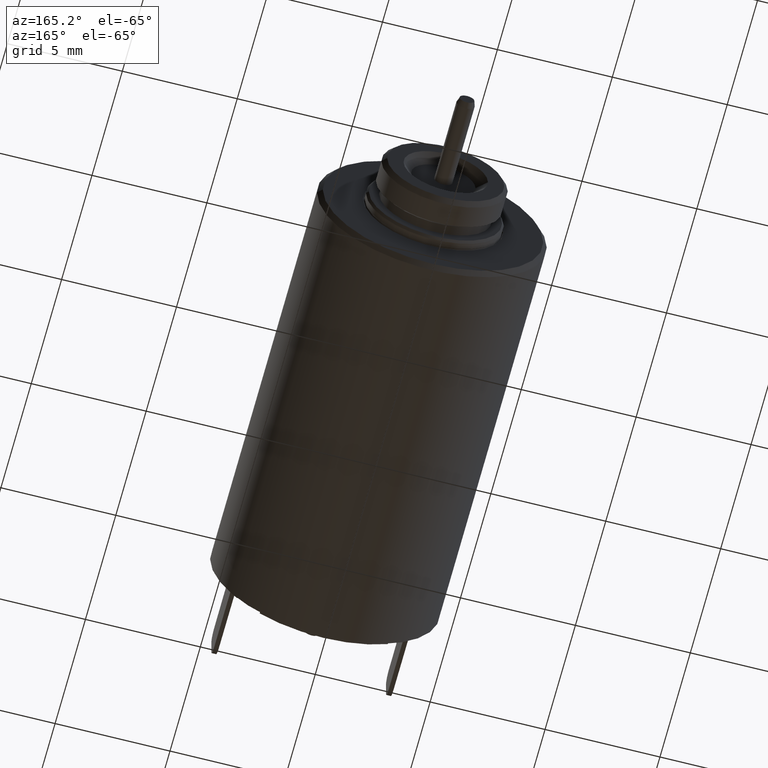
[diagram: clean part render]
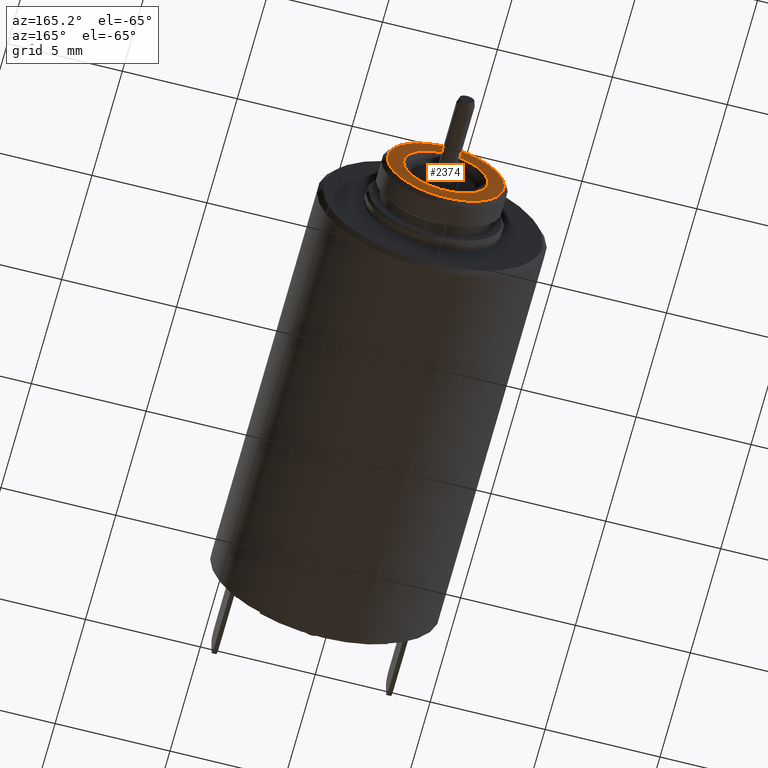
[diagram: same view with one face highlighted and labeled with its STEP entity id]
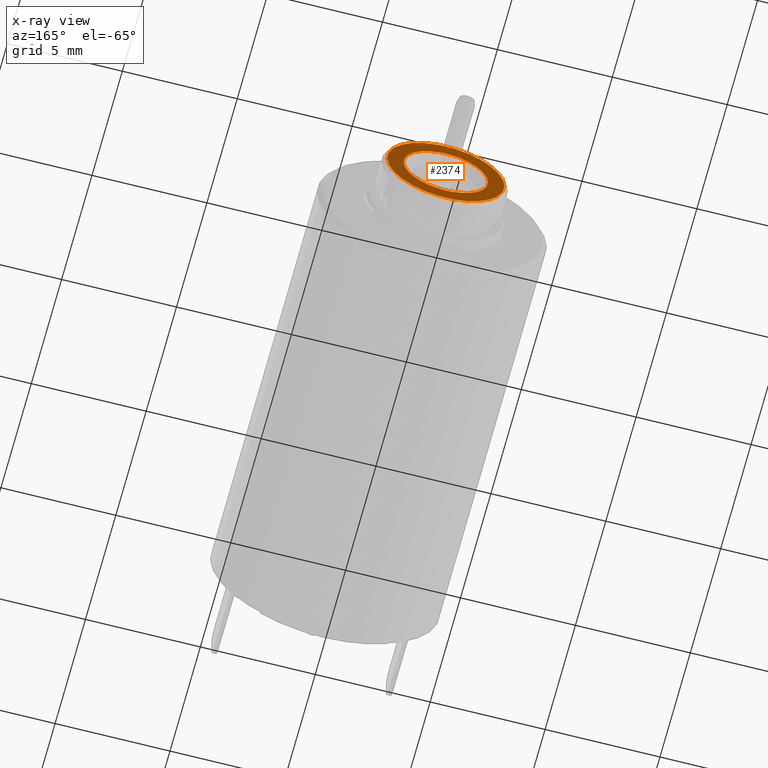
[diagram: x-ray of the same camera — body ghosted, the highlighted face saturated]
A machine part, auxiliary view. The second image highlights one B-rep face of the part: STEP entity #2374.
The next image is the same camera in x-ray: the body ghosted, the highlighted face saturated — about 0% of this face is hidden behind the body in this view.
In plain terms, the highlighted planar face has unit normal (0, 1, 0).
Its self-contained STEP definition (entity closure, byte-faithful):
#65=CARTESIAN_POINT('',(0.E0,-3.5E0,0.E0));
#66=DIRECTION('',(0.E0,-1.E0,0.E0));
#67=DIRECTION('',(-1.E0,0.E0,0.E0));
#68=AXIS2_PLACEMENT_3D('',#65,#66,#67);
#70=CARTESIAN_POINT('',(0.E0,-3.5E0,0.E0));
#71=DIRECTION('',(0.E0,1.E0,0.E0));
#72=DIRECTION('',(-1.E0,0.E0,0.E0));
#73=AXIS2_PLACEMENT_3D('',#70,#71,#72);
#75=CARTESIAN_POINT('',(0.E0,-3.5E0,0.E0));
#76=DIRECTION('',(0.E0,1.E0,0.E0));
#77=DIRECTION('',(-1.E0,0.E0,0.E0));
#78=AXIS2_PLACEMENT_3D('',#75,#76,#77);
#88=CARTESIAN_POINT('',(0.E0,-3.5E0,0.E0));
#89=DIRECTION('',(0.E0,-1.E0,0.E0));
#90=DIRECTION('',(-1.E0,0.E0,0.E0));
#91=AXIS2_PLACEMENT_3D('',#88,#89,#90);
#1777=CARTESIAN_POINT('',(-2.55E0,-3.5E0,0.E0));
#1779=VERTEX_POINT('',#1777);
#1801=CARTESIAN_POINT('',(2.55E0,-3.5E0,0.E0));
#1803=VERTEX_POINT('',#1801);
#1830=CARTESIAN_POINT('',(-1.8365E0,-3.5E0,0.E0));
#1832=VERTEX_POINT('',#1830);
#1838=CARTESIAN_POINT('',(1.8365E0,-3.5E0,0.E0));
#1840=VERTEX_POINT('',#1838);
#2359=CARTESIAN_POINT('',(0.E0,-3.5E0,0.E0));
#2360=DIRECTION('',(0.E0,1.E0,0.E0));
#2361=DIRECTION('',(1.E0,0.E0,0.E0));
#2362=AXIS2_PLACEMENT_3D('',#2359,#2360,#2361);
#2363=PLANE('',#2362);
#2365=ORIENTED_EDGE('',*,*,#2364,.F.);
#2367=ORIENTED_EDGE('',*,*,#2366,.T.);
#2368=EDGE_LOOP('',(#2365,#2367));
#2369=FACE_OUTER_BOUND('',#2368,.F.);
#2370=ORIENTED_EDGE('',*,*,#2352,.F.);
#2371=ORIENTED_EDGE('',*,*,#2341,.T.);
#2372=EDGE_LOOP('',(#2370,#2371));
#2373=FACE_BOUND('',#2372,.F.);
#2374=ADVANCED_FACE('',(#2369,#2373),#2363,.T.);
#69=CIRCLE('',#68,1.8365E0);
#74=CIRCLE('',#73,1.8365E0);
#79=CIRCLE('',#78,2.55E0);
#92=CIRCLE('',#91,2.55E0);
#2341=EDGE_CURVE('',#1832,#1840,#74,.T.);
#2352=EDGE_CURVE('',#1832,#1840,#69,.T.);
#2364=EDGE_CURVE('',#1779,#1803,#79,.T.);
#2366=EDGE_CURVE('',#1779,#1803,#92,.T.);